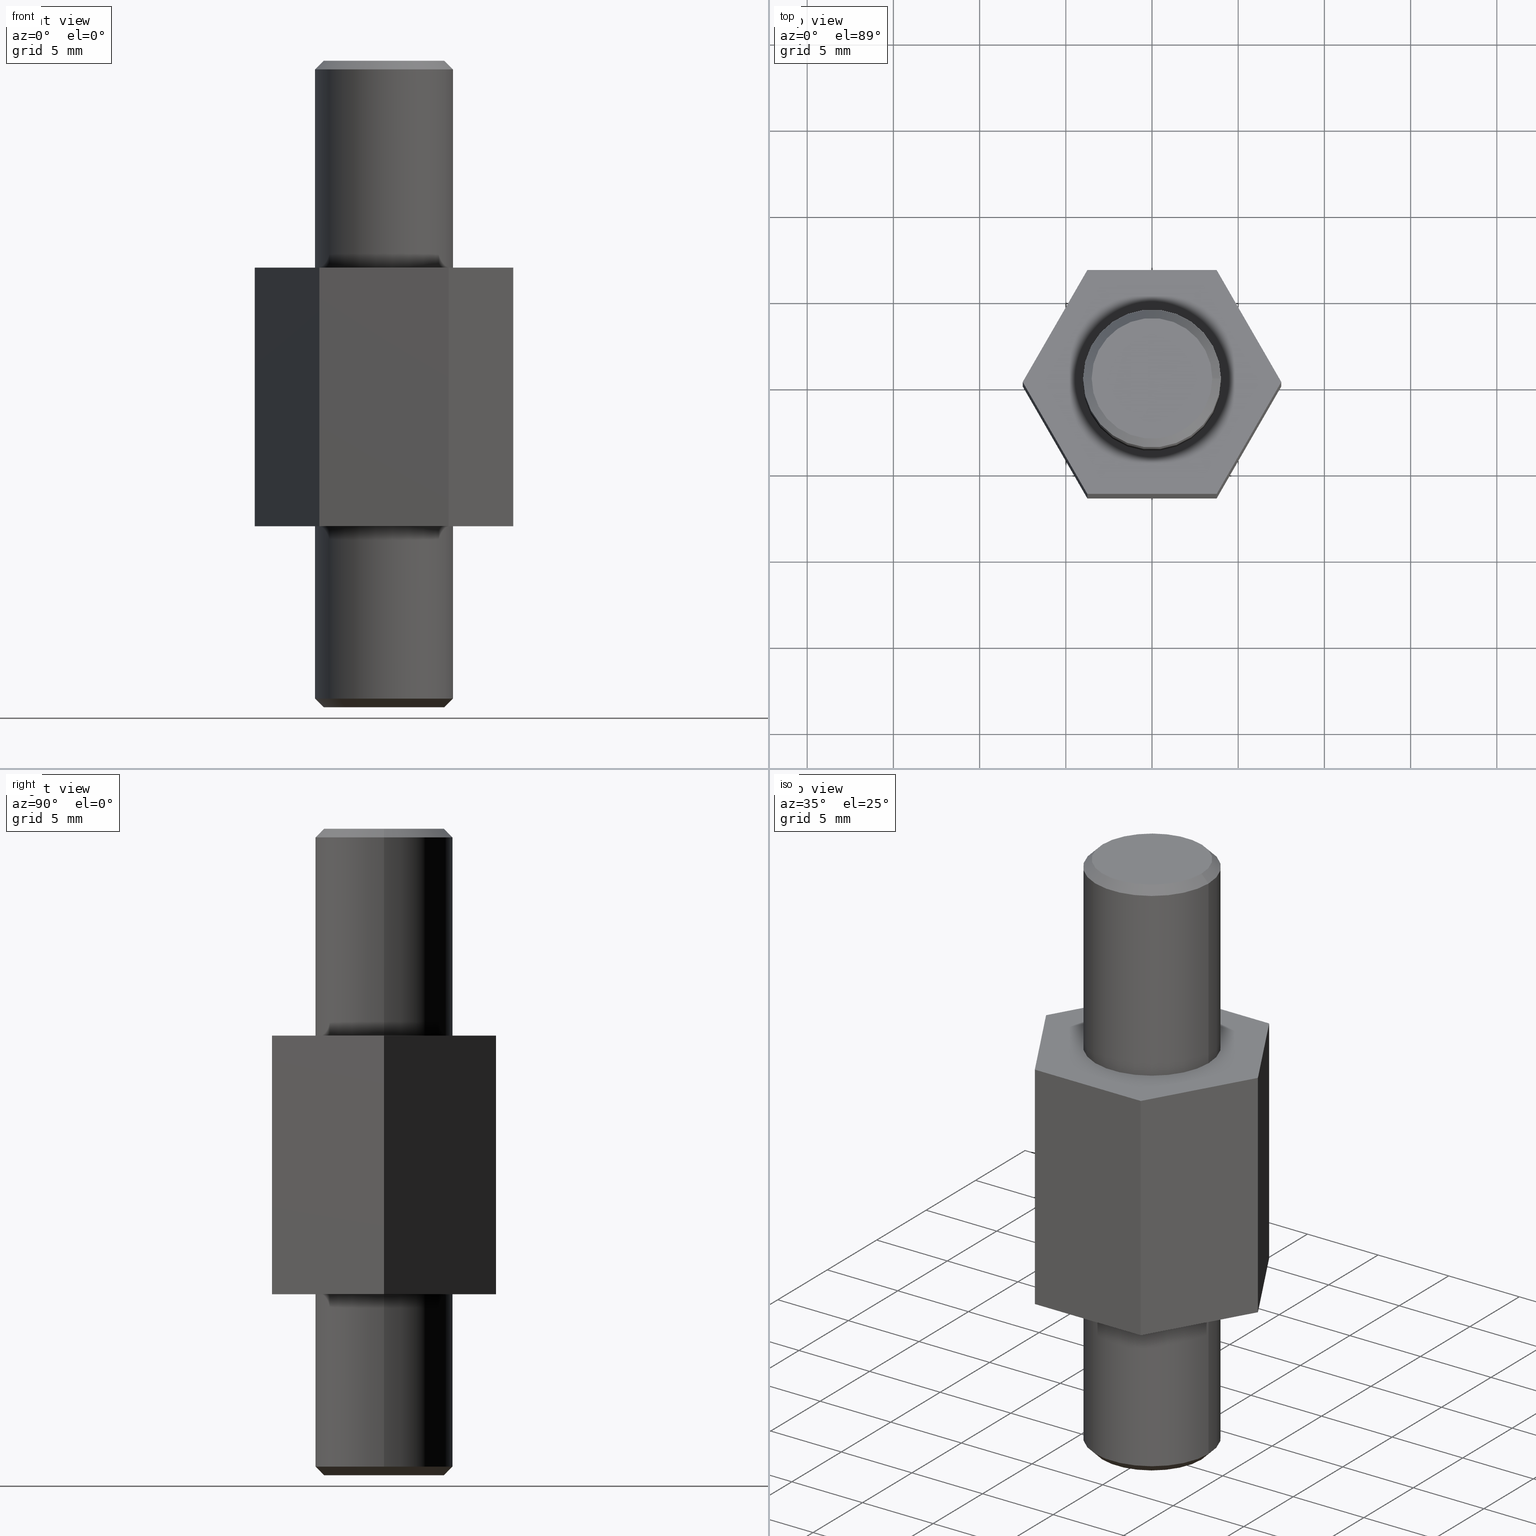
[diagram: canonical four-view strip — front | top / right | iso, engineering-drawing reading convention]
A machine part, canonical four-view strip (front | top / right | iso — engineering-drawing reading convention). The complete STEP part file that produces these views, byte-faithful:
ISO-10303-21;
HEADER;
/* Generated by software containing ST-Developer
 * from STEP Tools, Inc. (www.steptools.com) 
 */

FILE_DESCRIPTION(
/* description */ ('PERNO ESAGONALE x MOLLA A GAS H 15'),
/* implementation_level */ '2;1');

FILE_NAME(
/* name */ 
'Q:\\Catalogo\\2_Accessori Dierre\\Per Download Web\\CATALOGO ACCESSOR
I PER RIPARI\\PAGINA 72\\DPEMG0000002.stp',
/* time_stamp */ '2018-01-30T15:17:43+01:00',
/* author */ ('fzagni'),
/* organization */ (''),
/* preprocessor_version */ 'ST-DEVELOPER v16.1',
/* originating_system */ 'Autodesk Inventor 2016',
/* authorisation */ '');

FILE_SCHEMA (('AUTOMOTIVE_DESIGN { 1 0 10303 214 3 1 1 }'));
ENDSEC;

DATA;
#10=MECHANICAL_DESIGN_GEOMETRIC_PRESENTATION_REPRESENTATION('',(#13),#357);
#11=SHAPE_REPRESENTATION_RELATIONSHIP('SRR','None',#366,#12);
#12=ADVANCED_BREP_SHAPE_REPRESENTATION('',(#14),#356);
#13=STYLED_ITEM('',(#375),#14);
#14=MANIFOLD_SOLID_BREP('Solido1',#215);
#15=LINE('',#319,#33);
#16=LINE('',#321,#34);
#17=LINE('',#323,#35);
#18=LINE('',#325,#36);
#19=LINE('',#327,#37);
#20=LINE('',#328,#38);
#21=LINE('',#331,#39);
#22=LINE('',#333,#40);
#23=LINE('',#334,#41);
#24=LINE('',#337,#42);
#25=LINE('',#338,#43);
#26=LINE('',#341,#44);
#27=LINE('',#342,#45);
#28=LINE('',#345,#46);
#29=LINE('',#346,#47);
#30=LINE('',#349,#48);
#31=LINE('',#350,#49);
#32=LINE('',#352,#50);
#33=VECTOR('',#265,7.5);
#34=VECTOR('',#266,7.5);
#35=VECTOR('',#267,7.5);
#36=VECTOR('',#268,7.5);
#37=VECTOR('',#269,7.5);
#38=VECTOR('',#270,7.50000000000001);
#39=VECTOR('',#273,15.);
#40=VECTOR('',#274,7.5);
#41=VECTOR('',#275,15.);
#42=VECTOR('',#278,7.5);
#43=VECTOR('',#279,15.);
#44=VECTOR('',#282,7.5);
#45=VECTOR('',#283,15.);
#46=VECTOR('',#286,7.5);
#47=VECTOR('',#287,15.);
#48=VECTOR('',#290,7.50000000000001);
#49=VECTOR('',#291,15.);
#50=VECTOR('',#294,7.5);
#51=CYLINDRICAL_SURFACE('',#221,4.);
#52=CYLINDRICAL_SURFACE('',#226,4.);
#53=PLANE('',#220);
#54=PLANE('',#228);
#55=PLANE('',#229);
#56=PLANE('',#230);
#57=PLANE('',#231);
#58=PLANE('',#232);
#59=PLANE('',#233);
#60=PLANE('',#234);
#61=PLANE('',#235);
#62=PLANE('',#236);
#63=FACE_BOUND('',#84,.T.);
#64=FACE_BOUND('',#87,.T.);
#65=FACE_BOUND('',#89,.T.);
#66=FACE_BOUND('',#91,.T.);
#67=FACE_BOUND('',#94,.T.);
#68=FACE_BOUND('',#102,.T.);
#69=FACE_OUTER_BOUND('',#83,.T.);
#70=FACE_OUTER_BOUND('',#85,.T.);
#71=FACE_OUTER_BOUND('',#86,.T.);
#72=FACE_OUTER_BOUND('',#88,.T.);
#73=FACE_OUTER_BOUND('',#90,.T.);
#74=FACE_OUTER_BOUND('',#92,.T.);
#75=FACE_OUTER_BOUND('',#93,.T.);
#76=FACE_OUTER_BOUND('',#95,.T.);
#77=FACE_OUTER_BOUND('',#96,.T.);
#78=FACE_OUTER_BOUND('',#97,.T.);
#79=FACE_OUTER_BOUND('',#98,.T.);
#80=FACE_OUTER_BOUND('',#99,.T.);
#81=FACE_OUTER_BOUND('',#100,.T.);
#82=FACE_OUTER_BOUND('',#101,.T.);
#83=EDGE_LOOP('',(#151));
#84=EDGE_LOOP('',(#152));
#85=EDGE_LOOP('',(#153));
#86=EDGE_LOOP('',(#154));
#87=EDGE_LOOP('',(#155));
#88=EDGE_LOOP('',(#156));
#89=EDGE_LOOP('',(#157));
#90=EDGE_LOOP('',(#158));
#91=EDGE_LOOP('',(#159));
#92=EDGE_LOOP('',(#160));
#93=EDGE_LOOP('',(#161,#162,#163,#164,#165,#166));
#94=EDGE_LOOP('',(#167));
#95=EDGE_LOOP('',(#168,#169,#170,#171));
#96=EDGE_LOOP('',(#172,#173,#174,#175));
#97=EDGE_LOOP('',(#176,#177,#178,#179));
#98=EDGE_LOOP('',(#180,#181,#182,#183));
#99=EDGE_LOOP('',(#184,#185,#186,#187));
#100=EDGE_LOOP('',(#188,#189,#190,#191));
#101=EDGE_LOOP('',(#192,#193,#194,#195,#196,#197));
#102=EDGE_LOOP('',(#198));
#103=CIRCLE('',#218,4.);
#104=CIRCLE('',#219,3.5);
#105=CIRCLE('',#222,4.);
#106=CIRCLE('',#224,4.);
#107=CIRCLE('',#225,3.5);
#108=CIRCLE('',#227,4.);
#109=VERTEX_POINT('',#299);
#110=VERTEX_POINT('',#301);
#111=VERTEX_POINT('',#305);
#112=VERTEX_POINT('',#308);
#113=VERTEX_POINT('',#310);
#114=VERTEX_POINT('',#313);
#115=VERTEX_POINT('',#317);
#116=VERTEX_POINT('',#318);
#117=VERTEX_POINT('',#320);
#118=VERTEX_POINT('',#322);
#119=VERTEX_POINT('',#324);
#120=VERTEX_POINT('',#326);
#121=VERTEX_POINT('',#330);
#122=VERTEX_POINT('',#332);
#123=VERTEX_POINT('',#336);
#124=VERTEX_POINT('',#340);
#125=VERTEX_POINT('',#344);
#126=VERTEX_POINT('',#348);
#127=EDGE_CURVE('',#109,#109,#103,.T.);
#128=EDGE_CURVE('',#110,#110,#104,.T.);
#129=EDGE_CURVE('',#111,#111,#105,.T.);
#130=EDGE_CURVE('',#112,#112,#106,.T.);
#131=EDGE_CURVE('',#113,#113,#107,.T.);
#132=EDGE_CURVE('',#114,#114,#108,.T.);
#133=EDGE_CURVE('',#115,#116,#15,.T.);
#134=EDGE_CURVE('',#116,#117,#16,.T.);
#135=EDGE_CURVE('',#117,#118,#17,.T.);
#136=EDGE_CURVE('',#118,#119,#18,.T.);
#137=EDGE_CURVE('',#119,#120,#19,.T.);
#138=EDGE_CURVE('',#120,#115,#20,.T.);
#139=EDGE_CURVE('',#116,#121,#21,.T.);
#140=EDGE_CURVE('',#122,#121,#22,.T.);
#141=EDGE_CURVE('',#117,#122,#23,.T.);
#142=EDGE_CURVE('',#123,#122,#24,.T.);
#143=EDGE_CURVE('',#118,#123,#25,.T.);
#144=EDGE_CURVE('',#124,#123,#26,.T.);
#145=EDGE_CURVE('',#119,#124,#27,.T.);
#146=EDGE_CURVE('',#125,#124,#28,.T.);
#147=EDGE_CURVE('',#120,#125,#29,.T.);
#148=EDGE_CURVE('',#126,#125,#30,.T.);
#149=EDGE_CURVE('',#115,#126,#31,.T.);
#150=EDGE_CURVE('',#121,#126,#32,.T.);
#151=ORIENTED_EDGE('',*,*,#127,.T.);
#152=ORIENTED_EDGE('',*,*,#128,.T.);
#153=ORIENTED_EDGE('',*,*,#128,.F.);
#154=ORIENTED_EDGE('',*,*,#129,.F.);
#155=ORIENTED_EDGE('',*,*,#127,.F.);
#156=ORIENTED_EDGE('',*,*,#130,.T.);
#157=ORIENTED_EDGE('',*,*,#131,.T.);
#158=ORIENTED_EDGE('',*,*,#132,.F.);
#159=ORIENTED_EDGE('',*,*,#130,.F.);
#160=ORIENTED_EDGE('',*,*,#131,.F.);
#161=ORIENTED_EDGE('',*,*,#133,.T.);
#162=ORIENTED_EDGE('',*,*,#134,.T.);
#163=ORIENTED_EDGE('',*,*,#135,.T.);
#164=ORIENTED_EDGE('',*,*,#136,.T.);
#165=ORIENTED_EDGE('',*,*,#137,.T.);
#166=ORIENTED_EDGE('',*,*,#138,.T.);
#167=ORIENTED_EDGE('',*,*,#129,.T.);
#168=ORIENTED_EDGE('',*,*,#134,.F.);
#169=ORIENTED_EDGE('',*,*,#139,.T.);
#170=ORIENTED_EDGE('',*,*,#140,.F.);
#171=ORIENTED_EDGE('',*,*,#141,.F.);
#172=ORIENTED_EDGE('',*,*,#135,.F.);
#173=ORIENTED_EDGE('',*,*,#141,.T.);
#174=ORIENTED_EDGE('',*,*,#142,.F.);
#175=ORIENTED_EDGE('',*,*,#143,.F.);
#176=ORIENTED_EDGE('',*,*,#136,.F.);
#177=ORIENTED_EDGE('',*,*,#143,.T.);
#178=ORIENTED_EDGE('',*,*,#144,.F.);
#179=ORIENTED_EDGE('',*,*,#145,.F.);
#180=ORIENTED_EDGE('',*,*,#137,.F.);
#181=ORIENTED_EDGE('',*,*,#145,.T.);
#182=ORIENTED_EDGE('',*,*,#146,.F.);
#183=ORIENTED_EDGE('',*,*,#147,.F.);
#184=ORIENTED_EDGE('',*,*,#138,.F.);
#185=ORIENTED_EDGE('',*,*,#147,.T.);
#186=ORIENTED_EDGE('',*,*,#148,.F.);
#187=ORIENTED_EDGE('',*,*,#149,.F.);
#188=ORIENTED_EDGE('',*,*,#133,.F.);
#189=ORIENTED_EDGE('',*,*,#149,.T.);
#190=ORIENTED_EDGE('',*,*,#150,.F.);
#191=ORIENTED_EDGE('',*,*,#139,.F.);
#192=ORIENTED_EDGE('',*,*,#150,.T.);
#193=ORIENTED_EDGE('',*,*,#148,.T.);
#194=ORIENTED_EDGE('',*,*,#146,.T.);
#195=ORIENTED_EDGE('',*,*,#144,.T.);
#196=ORIENTED_EDGE('',*,*,#142,.T.);
#197=ORIENTED_EDGE('',*,*,#140,.T.);
#198=ORIENTED_EDGE('',*,*,#132,.T.);
#199=CONICAL_SURFACE('',#217,3.75,45.);
#200=CONICAL_SURFACE('',#223,3.75,44.9999999999998);
#201=ADVANCED_FACE('',(#69,#63),#199,.T.);
#202=ADVANCED_FACE('',(#70),#53,.F.);
#203=ADVANCED_FACE('',(#71,#64),#51,.T.);
#204=ADVANCED_FACE('',(#72,#65),#200,.T.);
#205=ADVANCED_FACE('',(#73,#66),#52,.T.);
#206=ADVANCED_FACE('',(#74),#54,.T.);
#207=ADVANCED_FACE('',(#75,#67),#55,.F.);
#208=ADVANCED_FACE('',(#76),#56,.T.);
#209=ADVANCED_FACE('',(#77),#57,.T.);
#210=ADVANCED_FACE('',(#78),#58,.T.);
#211=ADVANCED_FACE('',(#79),#59,.T.);
#212=ADVANCED_FACE('',(#80),#60,.T.);
#213=ADVANCED_FACE('',(#81),#61,.T.);
#214=ADVANCED_FACE('',(#82,#68),#62,.T.);
#215=CLOSED_SHELL('',(#201,#202,#203,#204,#205,#206,#207,#208,#209,#210,
#211,#212,#213,#214));
#216=AXIS2_PLACEMENT_3D('placement',#297,#237,#238);
#217=AXIS2_PLACEMENT_3D('',#298,#239,#240);
#218=AXIS2_PLACEMENT_3D('',#300,#241,#242);
#219=AXIS2_PLACEMENT_3D('',#302,#243,#244);
#220=AXIS2_PLACEMENT_3D('',#303,#245,#246);
#221=AXIS2_PLACEMENT_3D('',#304,#247,#248);
#222=AXIS2_PLACEMENT_3D('',#306,#249,#250);
#223=AXIS2_PLACEMENT_3D('',#307,#251,#252);
#224=AXIS2_PLACEMENT_3D('',#309,#253,#254);
#225=AXIS2_PLACEMENT_3D('',#311,#255,#256);
#226=AXIS2_PLACEMENT_3D('',#312,#257,#258);
#227=AXIS2_PLACEMENT_3D('',#314,#259,#260);
#228=AXIS2_PLACEMENT_3D('',#315,#261,#262);
#229=AXIS2_PLACEMENT_3D('',#316,#263,#264);
#230=AXIS2_PLACEMENT_3D('',#329,#271,#272);
#231=AXIS2_PLACEMENT_3D('',#335,#276,#277);
#232=AXIS2_PLACEMENT_3D('',#339,#280,#281);
#233=AXIS2_PLACEMENT_3D('',#343,#284,#285);
#234=AXIS2_PLACEMENT_3D('',#347,#288,#289);
#235=AXIS2_PLACEMENT_3D('',#351,#292,#293);
#236=AXIS2_PLACEMENT_3D('',#353,#295,#296);
#237=DIRECTION('axis',(0.,0.,1.));
#238=DIRECTION('refdir',(1.,0.,0.));
#239=DIRECTION('center_axis',(0.,0.,1.));
#240=DIRECTION('ref_axis',(-1.,0.,0.));
#241=DIRECTION('center_axis',(0.,0.,-1.));
#242=DIRECTION('ref_axis',(-1.,0.,0.));
#243=DIRECTION('center_axis',(0.,0.,1.));
#244=DIRECTION('ref_axis',(-1.,0.,0.));
#245=DIRECTION('center_axis',(0.,0.,1.));
#246=DIRECTION('ref_axis',(1.,0.,0.));
#247=DIRECTION('center_axis',(0.,0.,1.));
#248=DIRECTION('ref_axis',(-1.,0.,0.));
#249=DIRECTION('center_axis',(0.,0.,1.));
#250=DIRECTION('ref_axis',(-1.,0.,0.));
#251=DIRECTION('center_axis',(0.,0.,-1.));
#252=DIRECTION('ref_axis',(-1.,0.,0.));
#253=DIRECTION('center_axis',(0.,0.,1.));
#254=DIRECTION('ref_axis',(-1.,0.,0.));
#255=DIRECTION('center_axis',(0.,0.,-1.));
#256=DIRECTION('ref_axis',(-1.,0.,0.));
#257=DIRECTION('center_axis',(0.,0.,1.));
#258=DIRECTION('ref_axis',(-1.,0.,0.));
#259=DIRECTION('center_axis',(0.,0.,-1.));
#260=DIRECTION('ref_axis',(-1.,0.,0.));
#261=DIRECTION('center_axis',(0.,0.,1.));
#262=DIRECTION('ref_axis',(1.,0.,0.));
#263=DIRECTION('center_axis',(0.,0.,1.));
#264=DIRECTION('ref_axis',(1.,0.,0.));
#265=DIRECTION('',(-1.,1.48029736616688E-16,0.));
#266=DIRECTION('',(-0.5,0.866025403784439,0.));
#267=DIRECTION('',(0.5,0.866025403784438,0.));
#268=DIRECTION('',(1.,0.,0.));
#269=DIRECTION('',(0.500000000000001,-0.866025403784438,0.));
#270=DIRECTION('',(-0.5,-0.866025403784439,0.));
#271=DIRECTION('center_axis',(-0.866025403784439,-0.5,0.));
#272=DIRECTION('ref_axis',(0.5,-0.866025403784439,0.));
#273=DIRECTION('',(0.,0.,1.));
#274=DIRECTION('',(0.5,-0.866025403784439,0.));
#275=DIRECTION('',(0.,0.,1.));
#276=DIRECTION('center_axis',(-0.866025403784439,0.5,0.));
#277=DIRECTION('ref_axis',(-0.5,-0.866025403784439,0.));
#278=DIRECTION('',(-0.5,-0.866025403784438,0.));
#279=DIRECTION('',(0.,0.,1.));
#280=DIRECTION('center_axis',(0.,1.,0.));
#281=DIRECTION('ref_axis',(-1.,0.,0.));
#282=DIRECTION('',(-1.,0.,0.));
#283=DIRECTION('',(0.,0.,1.));
#284=DIRECTION('center_axis',(0.866025403784438,0.500000000000001,0.));
#285=DIRECTION('ref_axis',(-0.5,0.866025403784438,0.));
#286=DIRECTION('',(-0.500000000000001,0.866025403784438,0.));
#287=DIRECTION('',(0.,0.,1.));
#288=DIRECTION('center_axis',(0.866025403784439,-0.5,0.));
#289=DIRECTION('ref_axis',(0.5,0.866025403784439,0.));
#290=DIRECTION('',(0.5,0.866025403784439,0.));
#291=DIRECTION('',(0.,0.,1.));
#292=DIRECTION('center_axis',(-1.48029736616688E-16,-1.,0.));
#293=DIRECTION('ref_axis',(1.,-1.77635683940025E-16,0.));
#294=DIRECTION('',(1.,-1.48029736616688E-16,0.));
#295=DIRECTION('center_axis',(0.,0.,1.));
#296=DIRECTION('ref_axis',(1.,0.,0.));
#297=CARTESIAN_POINT('',(0.,0.,0.));
#298=CARTESIAN_POINT('Origin',(0.,0.,-5.));
#299=CARTESIAN_POINT('',(4.,-4.89858719658941E-16,-4.75));
#300=CARTESIAN_POINT('Origin',(0.,0.,-4.75));
#301=CARTESIAN_POINT('',(3.5,4.28626379701574E-16,-5.25));
#302=CARTESIAN_POINT('Origin',(0.,0.,-5.25));
#303=CARTESIAN_POINT('Origin',(-2.72118023435153E-16,0.,-5.25));
#304=CARTESIAN_POINT('Origin',(0.,0.,0.));
#305=CARTESIAN_POINT('',(4.,4.89858719658941E-16,5.25));
#306=CARTESIAN_POINT('Origin',(0.,0.,5.25));
#307=CARTESIAN_POINT('Origin',(0.,0.,32.));
#308=CARTESIAN_POINT('',(4.,4.89858719658941E-16,31.75));
#309=CARTESIAN_POINT('Origin',(0.,0.,31.75));
#310=CARTESIAN_POINT('',(3.5,-4.28626379701574E-16,32.25));
#311=CARTESIAN_POINT('Origin',(0.,0.,32.25));
#312=CARTESIAN_POINT('Origin',(0.,0.,20.25));
#313=CARTESIAN_POINT('',(4.,4.89858719658941E-16,20.25));
#314=CARTESIAN_POINT('Origin',(0.,0.,20.25));
#315=CARTESIAN_POINT('Origin',(-2.72118023435153E-16,0.,32.25));
#316=CARTESIAN_POINT('Origin',(0.,0.,5.25));
#317=CARTESIAN_POINT('',(3.75,-6.49519052838329,5.25));
#318=CARTESIAN_POINT('',(-3.75,-6.49519052838329,5.25));
#319=CARTESIAN_POINT('',(3.75,-6.49519052838329,5.25));
#320=CARTESIAN_POINT('',(-7.5,0.,5.25));
#321=CARTESIAN_POINT('',(-3.75,-6.49519052838329,5.25));
#322=CARTESIAN_POINT('',(-3.75,6.49519052838329,5.25));
#323=CARTESIAN_POINT('',(-7.5,0.,5.25));
#324=CARTESIAN_POINT('',(3.75,6.49519052838329,5.25));
#325=CARTESIAN_POINT('',(-3.75,6.49519052838329,5.25));
#326=CARTESIAN_POINT('',(7.5,4.16490421173959E-15,5.25));
#327=CARTESIAN_POINT('',(3.75,6.49519052838329,5.25));
#328=CARTESIAN_POINT('',(7.5,4.16490421173959E-15,5.25));
#329=CARTESIAN_POINT('Origin',(-7.5,1.11022302462516E-15,5.25));
#330=CARTESIAN_POINT('',(-3.75,-6.49519052838329,20.25));
#331=CARTESIAN_POINT('',(-3.75,-6.49519052838329,5.25));
#332=CARTESIAN_POINT('',(-7.5,0.,20.25));
#333=CARTESIAN_POINT('',(-3.75,-6.49519052838329,20.25));
#334=CARTESIAN_POINT('',(-7.5,0.,5.25));
#335=CARTESIAN_POINT('Origin',(-3.75,6.49519052838329,5.25));
#336=CARTESIAN_POINT('',(-3.75,6.49519052838329,20.25));
#337=CARTESIAN_POINT('',(-7.5,0.,20.25));
#338=CARTESIAN_POINT('',(-3.75,6.49519052838329,5.25));
#339=CARTESIAN_POINT('Origin',(3.75,6.49519052838329,5.25));
#340=CARTESIAN_POINT('',(3.75,6.49519052838329,20.25));
#341=CARTESIAN_POINT('',(-3.75,6.49519052838329,20.25));
#342=CARTESIAN_POINT('',(3.75,6.49519052838329,5.25));
#343=CARTESIAN_POINT('Origin',(7.5,4.44089209850063E-15,5.25));
#344=CARTESIAN_POINT('',(7.5,4.44089209850063E-15,20.25));
#345=CARTESIAN_POINT('',(3.75,6.49519052838329,20.25));
#346=CARTESIAN_POINT('',(7.5,4.16490421173959E-15,5.25));
#347=CARTESIAN_POINT('Origin',(3.75,-6.49519052838329,5.25));
#348=CARTESIAN_POINT('',(3.75,-6.49519052838329,20.25));
#349=CARTESIAN_POINT('',(7.5,4.16490421173959E-15,20.25));
#350=CARTESIAN_POINT('',(3.75,-6.49519052838329,5.25));
#351=CARTESIAN_POINT('Origin',(-3.75,-6.49519052838329,5.25));
#352=CARTESIAN_POINT('',(3.75,-6.49519052838329,20.25));
#353=CARTESIAN_POINT('Origin',(0.,0.,20.25));
#354=UNCERTAINTY_MEASURE_WITH_UNIT(LENGTH_MEASURE(0.01),#358,
'DISTANCE_ACCURACY_VALUE',
'Maximum model space distance between geometric entities at asserted c
onnectivities');
#355=UNCERTAINTY_MEASURE_WITH_UNIT(LENGTH_MEASURE(1.E-6),#358,
'DISTANCE_ACCURACY_VALUE',
'Maximum model space distance between geometric entities at asserted c
onnectivities');
#356=(
GEOMETRIC_REPRESENTATION_CONTEXT(3)
GLOBAL_UNCERTAINTY_ASSIGNED_CONTEXT((#354))
GLOBAL_UNIT_ASSIGNED_CONTEXT((#358,#361,#359))
REPRESENTATION_CONTEXT('','3D')
);
#357=(
GEOMETRIC_REPRESENTATION_CONTEXT(3)
GLOBAL_UNCERTAINTY_ASSIGNED_CONTEXT((#355))
GLOBAL_UNIT_ASSIGNED_CONTEXT((#358,#361,#359))
REPRESENTATION_CONTEXT('','3D')
);
#358=(
LENGTH_UNIT()
NAMED_UNIT(*)
SI_UNIT(.MILLI.,.METRE.)
);
#359=(
NAMED_UNIT(*)
SI_UNIT($,.STERADIAN.)
SOLID_ANGLE_UNIT()
);
#360=DIMENSIONAL_EXPONENTS(0.,0.,0.,0.,0.,0.,0.);
#361=(
CONVERSION_BASED_UNIT('degree',#363)
NAMED_UNIT(#360)
PLANE_ANGLE_UNIT()
);
#362=(
NAMED_UNIT(*)
PLANE_ANGLE_UNIT()
SI_UNIT($,.RADIAN.)
);
#363=PLANE_ANGLE_MEASURE_WITH_UNIT(PLANE_ANGLE_MEASURE(0.01745329252),#362);
#364=SHAPE_DEFINITION_REPRESENTATION(#365,#366);
#365=PRODUCT_DEFINITION_SHAPE('',$,#368);
#366=SHAPE_REPRESENTATION('',(#216),#356);
#367=PRODUCT_DEFINITION_CONTEXT('part definition',#372,'design');
#368=PRODUCT_DEFINITION('XT90062','XT90062',#369,#367);
#369=PRODUCT_DEFINITION_FORMATION('','A',#374);
#370=PRODUCT_RELATED_PRODUCT_CATEGORY('XT90062','XT90062',(#374));
#371=APPLICATION_PROTOCOL_DEFINITION('international standard',
'automotive_design',2009,#372);
#372=APPLICATION_CONTEXT(
'Core Data for Automotive Mechanical Design Process');
#373=PRODUCT_CONTEXT('part definition',#372,'mechanical');
#374=PRODUCT('XT90062','XT90062',$,(#373));
#375=PRESENTATION_STYLE_ASSIGNMENT((#376));
#376=SURFACE_STYLE_USAGE(.BOTH.,#377);
#377=SURFACE_SIDE_STYLE('',(#378));
#378=SURFACE_STYLE_FILL_AREA(#379);
#379=FILL_AREA_STYLE('',(#380));
#380=FILL_AREA_STYLE_COLOUR('',#381);
#381=COLOUR_RGB('',0.83921568627451,0.886274509803922,0.854901960784314);
ENDSEC;
END-ISO-10303-21;
